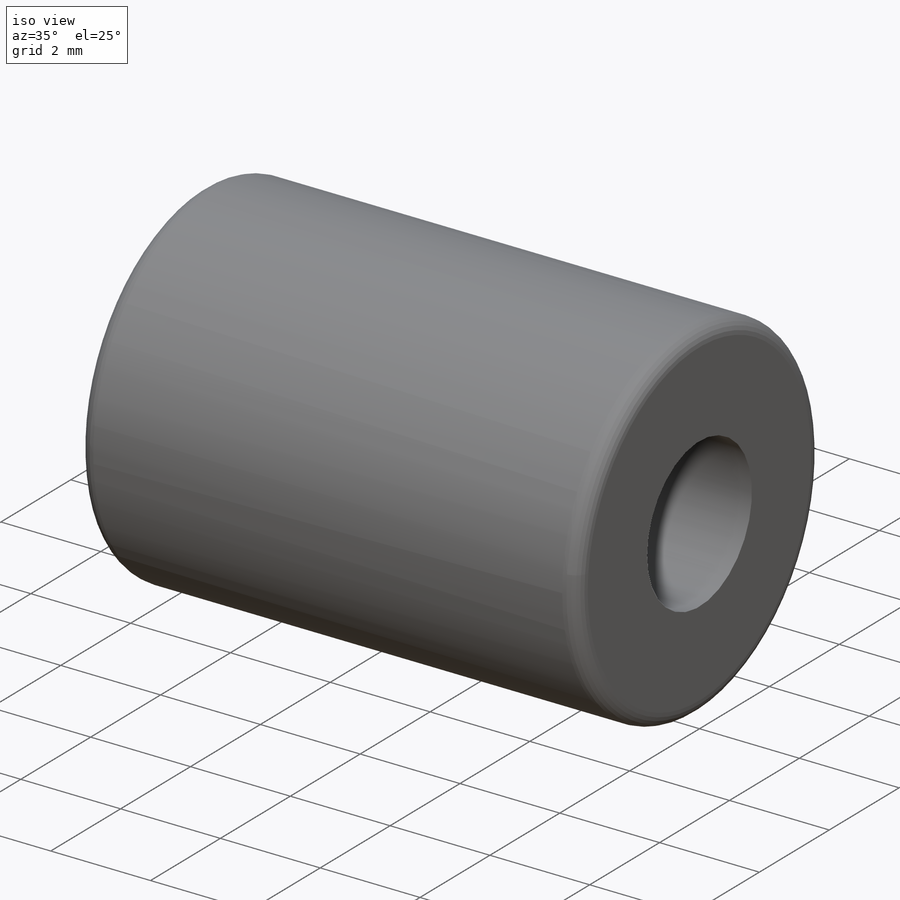
[diagram: iso view]
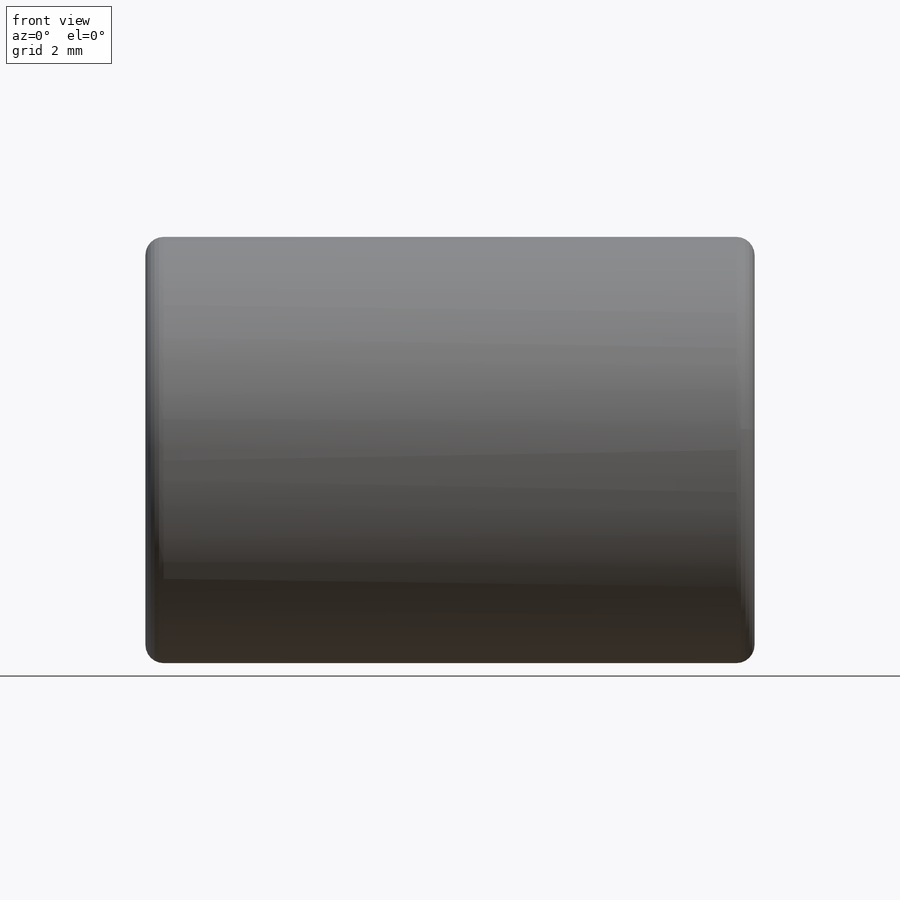
[diagram: front view]
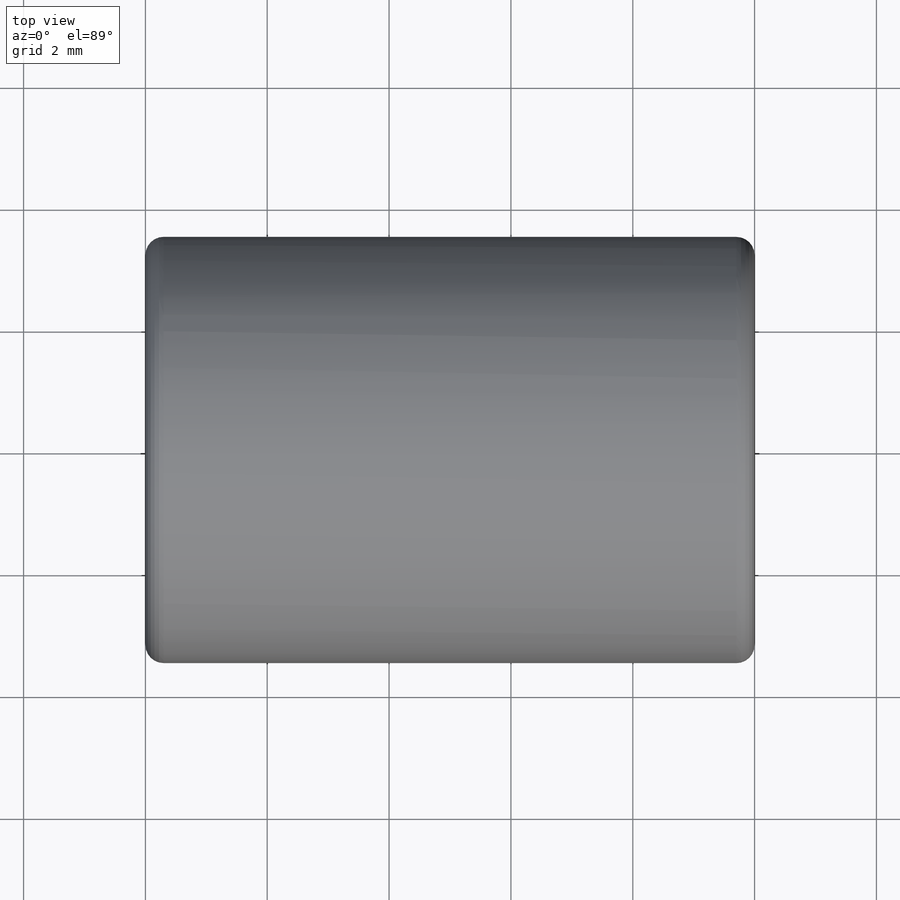
[diagram: top view]
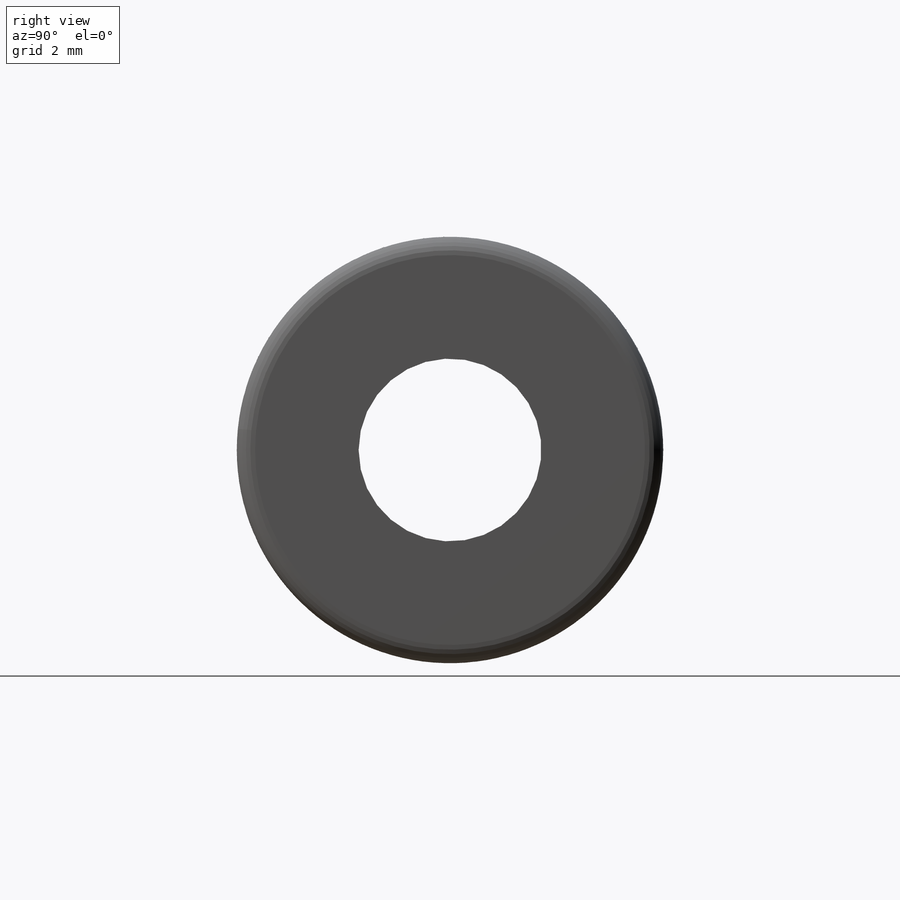
[diagram: right view]
SOLIDWORKS PART (.sldprt)
format: sldprt  version: not decoded by parser v0  size: 341,504 bytes
history: native  units: mm
features: sketch x6, revolve x3, cut_revolve x3, fillet x2, material x1 (+14 scaffold rows collapsed; 3 parser-record rows omitted)
feature tree (32):
  scaffold x14  (default folders/planes/origin — collapsed)
  material  "Material <not specified>"
  parser-record x3  (decoder bookkeeping rows leaked as tree rows — omitted from the tree; the rows remain in map.json)
  sketch  "Sketch1"  dims[D=7.0mm DR_s=3.0mm L=10.0mm]
  revolve  "Revolve1"  Angle=360deg FIX_1=360deg
  fillet  "Fillet1"  Radius=0.3mm R_s=0.3mm
  sketch  "Sketch2"  dims[c1.D1.=9.6mm c1.B=8.0mm c1.W=1.1mm c2.B=8.0mm c2.L=10.0mm c2.D=10.0mm c2.D2=1.1mm]
  cut_revolve  "Cut-Revolve1"  Angle=360deg FIX_2=360deg
  sketch  "Sketch5"  dims[R=0.4mm L=16.0mm D=12.0mm F_s=0.3mm]
  cut_revolve  "Cut-Revolve2"  Angle=360deg FIX_6=360deg
  sketch  "Sketch6"  dims[D=19.0mm DR_s=10.0mm L1=29.0mm V=5.0mm]
  revolve  "Revolve2"  Angle=360deg
  fillet  "Fillet3"  Radius=0.4mm R_s=0.4mm
  sketch  "Sketch7"  dims[c1.D1.=10.0mm c1.B=8.0mm c1.W=1.1mm c2.B=19.4mm c2.L=15.0mm c2.D=10.0mm c2.KSS_2=5.0mm c2.D1.=18.0mm c3.D=19.0mm]
  cut_revolve  "Cut-Revolve3"  Angle=360deg
  sketch  "Sketch4"  dims[c1.V=5.0mm c1.FIX_4=0.1mm c1.L1=29.0mm c1.L=39.0mm c1.D1.=19.0mm c2.V=5.0mm c2.L=39.0mm c2.D1.=18.0mm c2.D=18.0mm c2.FIX_4=0.1mm c2.KSS_1=6.8mm c3.D=19.0mm c3.DR_S=10.0mm]
  revolve  "Revolve3"  Angle=360deg
decode coverage: 14 of 14 modeling features carry decoded parameters
note: suppression state not decoded; provenance and decode notes live in map.json
